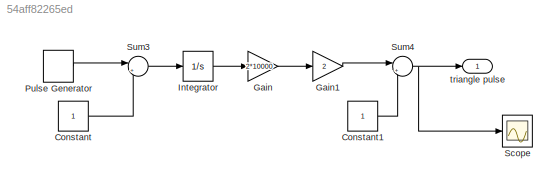
MODEL slx_54aff82265ed
KIND model
CONFIG AbsTol = auto
CONFIG EnableMultiTasking = off
CONFIG FixedStep = auto
CONFIG MaxStep = auto
CONFIG MinStep = auto
CONFIG RelTol = 1e-3
CONFIG SampleTimeConstraint = Unconstrained
CONFIG SolverName = VariableStepAuto
CONFIG StartTime = 0.0
CONFIG StopTime = 10.0
BLOCK [Constant] Constant
BLOCK [Constant] Constant1
BLOCK [Gain] Gain
  Gain = 2*10000
BLOCK [Gain] Gain1
  Gain = 2
BLOCK [Integrator] Integrator
BLOCK [DiscretePulseGenerator] Pulse Generator
  Amplitude = 2
  Period = 1/10000
  PulseType = Time based
  PulseWidth = 50
BLOCK [Scope] Scope
  Floating = off
  NumInputPorts = 1
  ScopeSpecificationString = Simulink.scopes.TimeScopeBlockCfg('CurrentConfiguration', extmgr.ConfigurationSet(extmgr.Configuration('Core','General UI',true),extmgr.Configuration('Core','Source UI',true),extmgr.Configuration('Sources','WiredSimulink',true),extmgr.Configuration('Visuals','Time Domain',true,'SerializedDisplays',{struct('MinYLimReal','-1.25','MaxYLimReal','1.25','YLabelReal','','MinYLimMag','0.00000','MaxYLimMag...<+1381ch>
BLOCK [Sum] Sum3
  Inputs = |+-
BLOCK [Sum] Sum4
  Inputs = |+-
BLOCK [Outport] triangle pulse
LINE Constant1:1 -> Sum4:2
LINE Constant:1 -> Sum3:2
LINE Gain1:1 -> Sum4:1
LINE Gain:1 -> Gain1:1
LINE Integrator:1 -> Gain:1
LINE Pulse Generator:1 -> Sum3:1
LINE Sum3:1 -> Integrator:1
NET Sum4:1 -> Scope:1, triangle pulse:1
note: NET lines group one-source signal fan-out (src -> all destinations, sorted); 1:1 wires keep LINE
